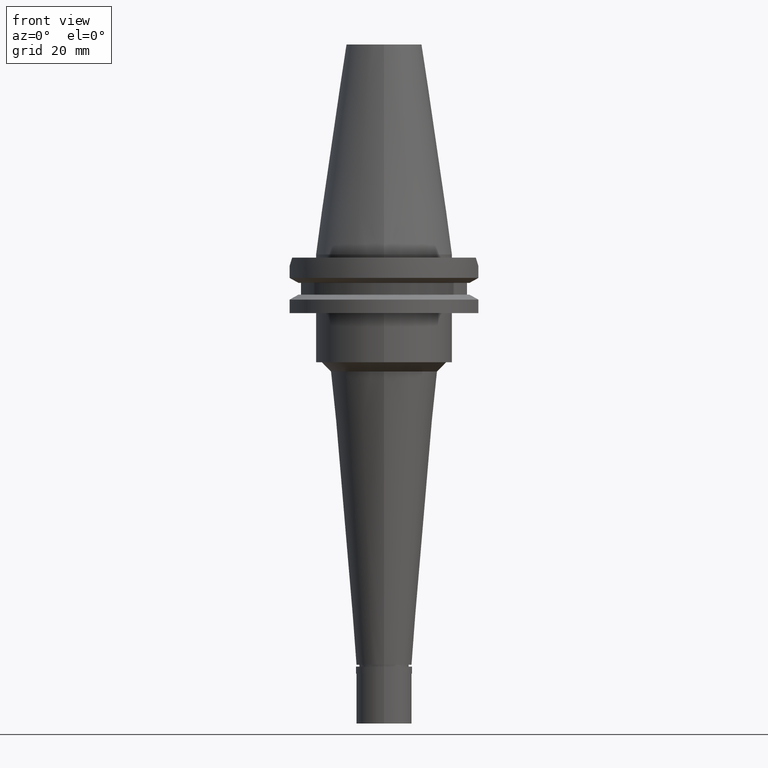
[diagram: clean part render]
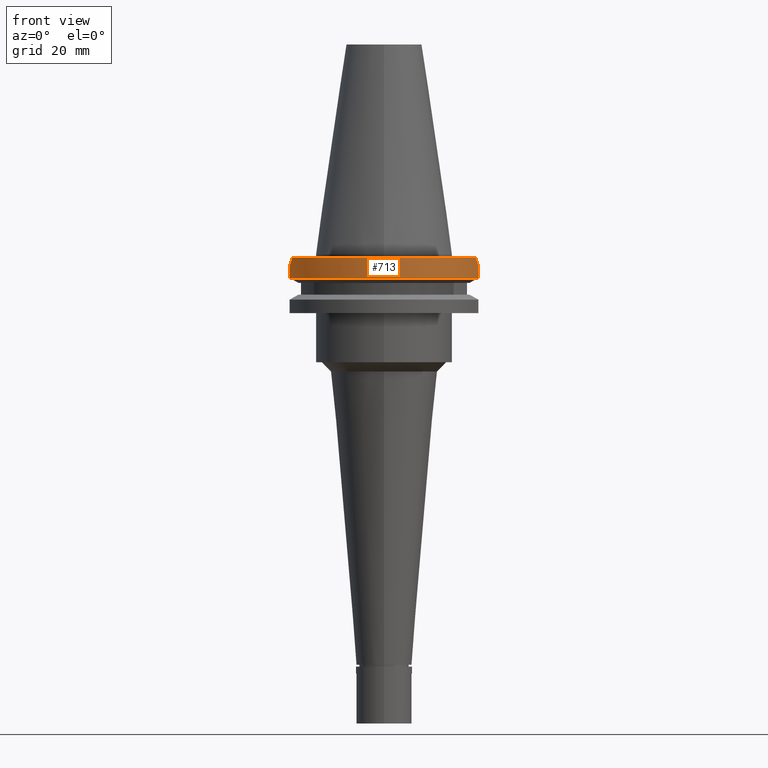
[diagram: same view with one face highlighted and labeled with its STEP entity id]
A machine part, front view. The second image highlights one B-rep face of the part: STEP entity #713.
In plain terms, the highlighted cylindrical surface (partial cylindrical patch) has radius 31.75 mm, axis along (0, 0, -1).
Its self-contained STEP definition (entity closure, byte-faithful):
#136 = CARTESIAN_POINT ( 'NONE',  ( 0.0000000000000000000, 1.121722380078999823E-14, -7.601333230925999551 ) ) ;
#140 = AXIS2_PLACEMENT_3D ( 'NONE', #2193, #1735, #3001 ) ;
#157 = CARTESIAN_POINT ( 'NONE',  ( 30.67550162588999640, -8.189999999999999503, -3.700000000000000178 ) ) ;
#197 = ORIENTED_EDGE ( 'NONE', *, *, #2806, .F. ) ;
#340 = LINE ( 'NONE', #3064, #2408 ) ;
#417 = VERTEX_POINT ( 'NONE', #2794 ) ;
#422 = EDGE_CURVE ( 'NONE', #417, #1392, #2066, .T. ) ;
#430 = AXIS2_PLACEMENT_3D ( 'NONE', #2493, #1941, #482 ) ;
#482 = DIRECTION ( 'NONE',  ( 0.0000000000000000000, -1.000000000000000000, 0.0000000000000000000 ) ) ;
#552 = DIRECTION ( 'NONE',  ( -4.149952334242944498E-08, -1.554361652635980091E-07, -0.9999999999999870104 ) ) ;
#619 = CARTESIAN_POINT ( 'NONE',  ( -30.67550162588999640, -8.189999999999999503, -3.700000000000000178 ) ) ;
#624 = CARTESIAN_POINT ( 'NONE',  ( -29.82399034335000110, -10.89000000000000057, -1.000000000001000089 ) ) ;
#656 = CARTESIAN_POINT ( 'NONE',  ( -30.67550162588999640, -8.189999999999999503, -3.700000000000000178 ) ) ;
#713 = ADVANCED_FACE ( 'NONE', ( #2970 ), #1223, .T. ) ;
#979 = CARTESIAN_POINT ( 'NONE',  ( 29.82399034335000110, -10.89000000000000057, -1.000000000001000089 ) ) ;
#1128 = ORIENTED_EDGE ( 'NONE', *, *, #1194, .F. ) ;
#1130 = DIRECTION ( 'NONE',  ( 0.0000000000000000000, 0.0000000000000000000, 1.000000000000000000 ) ) ;
#1194 = EDGE_CURVE ( 'NONE', #417, #2015, #340, .T. ) ;
#1202 = CIRCLE ( 'NONE', #430, 31.75000000000000000 ) ;
#1223 = CYLINDRICAL_SURFACE ( 'NONE', #140, 31.75000000000000000 ) ;
#1276 = LINE ( 'NONE', #2247, #2271 ) ;
#1392 = VERTEX_POINT ( 'NONE', #2572 ) ;
#1456 = CARTESIAN_POINT ( 'NONE',  ( -29.82399034335000110, -10.89000000000000057, -1.000000000001000089 ) ) ;
#1482 = CARTESIAN_POINT ( 'NONE',  ( 30.43183015827552396, -9.102667216255303728, -2.787332783744696840 ) ) ;
#1539 = DIRECTION ( 'NONE',  ( 8.604053470648995806E-09, -3.222588451521998241E-08, 0.9999999999999994449 ) ) ;
#1541 = VERTEX_POINT ( 'NONE', #157 ) ;
#1594 = ORIENTED_EDGE ( 'NONE', *, *, #422, .T. ) ;
#1607 = EDGE_CURVE ( 'NONE', #2015, #2319, #1642, .T. ) ;
#1638 = CARTESIAN_POINT ( 'NONE',  ( -30.43183015827552040, -9.102667216255303728, -2.787332783744696840 ) ) ;
#1642 = B_SPLINE_CURVE_WITH_KNOTS ( 'NONE', 3,
 ( #656, #1638, #2835, #624 ),
 .UNSPECIFIED., .F., .F.,
 ( 4, 4 ),
 ( 0.0000000000000000000, 1.000000000000000000 ),
 .UNSPECIFIED. ) ;
#1735 = DIRECTION ( 'NONE',  ( 0.0000000000000000000, 0.0000000000000000000, -1.000000000000000000 ) ) ;
#1745 = CARTESIAN_POINT ( 'NONE',  ( 30.67550162588999640, -8.189999999999999503, -3.700000000000000178 ) ) ;
#1817 = CARTESIAN_POINT ( 'NONE',  ( 29.82399034335000110, -10.89000000000000057, -1.000000000001000089 ) ) ;
#1898 = ORIENTED_EDGE ( 'NONE', *, *, #2720, .T. ) ;
#1920 = EDGE_CURVE ( 'NONE', #1541, #1392, #1276, .T. ) ;
#1941 = DIRECTION ( 'NONE',  ( 0.0000000000000000000, 0.0000000000000000000, -1.000000000000000000 ) ) ;
#1975 = AXIS2_PLACEMENT_3D ( 'NONE', #136, #1130, #2047 ) ;
#2015 = VERTEX_POINT ( 'NONE', #619 ) ;
#2047 = DIRECTION ( 'NONE',  ( -0.9661575315241073270, -0.2579527559055020958, 0.0000000000000000000 ) ) ;
#2066 = CIRCLE ( 'NONE', #1975, 31.74999999999998579 ) ;
#2160 = B_SPLINE_CURVE_WITH_KNOTS ( 'NONE', 3,
 ( #979, #3174, #1482, #1745 ),
 .UNSPECIFIED., .F., .F.,
 ( 4, 4 ),
 ( 0.0000000000000000000, 1.000000000000000000 ),
 .UNSPECIFIED. ) ;
#2193 = CARTESIAN_POINT ( 'NONE',  ( 0.0000000000000000000, 2.192760710042999810E-14, 79.05249999999999488 ) ) ;
#2247 = CARTESIAN_POINT ( 'NONE',  ( 30.67550162588999640, -8.189999999999999503, -3.700000000000000178 ) ) ;
#2271 = VECTOR ( 'NONE', #552, 1000.000000000000227 ) ;
#2319 = VERTEX_POINT ( 'NONE', #1456 ) ;
#2323 = ORIENTED_EDGE ( 'NONE', *, *, #1920, .F. ) ;
#2408 = VECTOR ( 'NONE', #1539, 1000.000000000000114 ) ;
#2493 = CARTESIAN_POINT ( 'NONE',  ( 0.0000000000000000000, 2.192760710042999810E-14, -0.9999999999999000799 ) ) ;
#2572 = CARTESIAN_POINT ( 'NONE',  ( 30.67550146398999900, -8.190000606407000561, -7.601327811714999605 ) ) ;
#2720 = EDGE_CURVE ( 'NONE', #2955, #2319, #1202, .T. ) ;
#2770 = ORIENTED_EDGE ( 'NONE', *, *, #1607, .F. ) ;
#2794 = CARTESIAN_POINT ( 'NONE',  ( -30.67550165945999652, -8.189999874276001179, -7.601334354445000052 ) ) ;
#2806 = EDGE_CURVE ( 'NONE', #2955, #1541, #2160, .T. ) ;
#2835 = CARTESIAN_POINT ( 'NONE',  ( -30.14799306409551960, -10.00266721625513888, -1.887332783744861908 ) ) ;
#2955 = VERTEX_POINT ( 'NONE', #1817 ) ;
#2970 = FACE_OUTER_BOUND ( 'NONE', #3049, .T. ) ;
#3001 = DIRECTION ( 'NONE',  ( 0.0000000000000000000, -1.000000000000000000, 0.0000000000000000000 ) ) ;
#3049 = EDGE_LOOP ( 'NONE', ( #197, #1898, #2770, #1128, #1594, #2323 ) ) ;
#3064 = CARTESIAN_POINT ( 'NONE',  ( -30.67550165945999652, -8.189999874276001179, -7.601334354445000052 ) ) ;
#3174 = CARTESIAN_POINT ( 'NONE',  ( 30.14799306409552671, -10.00266721625513888, -1.887332783744861908 ) ) ;